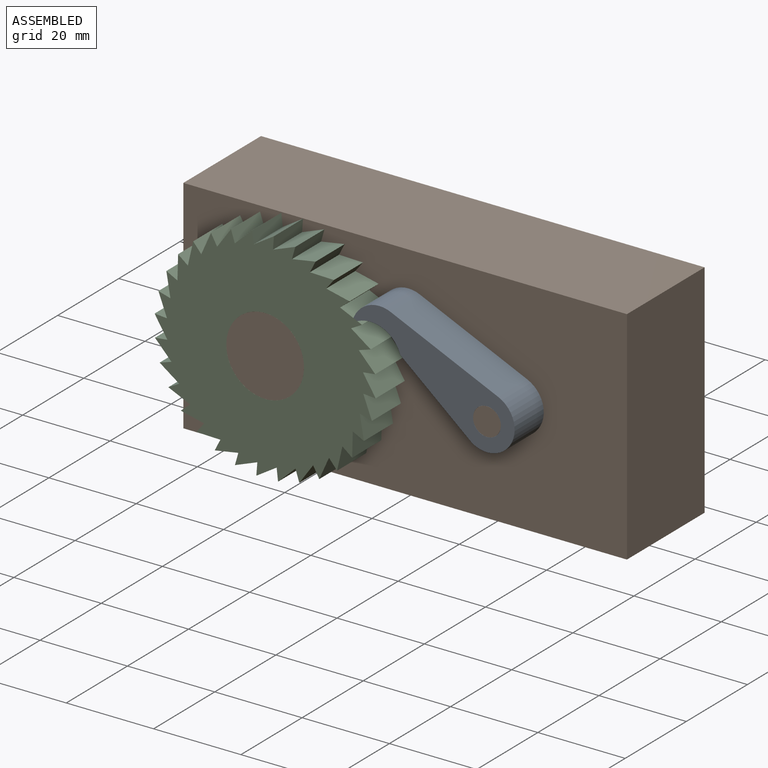
[diagram: assembled view]
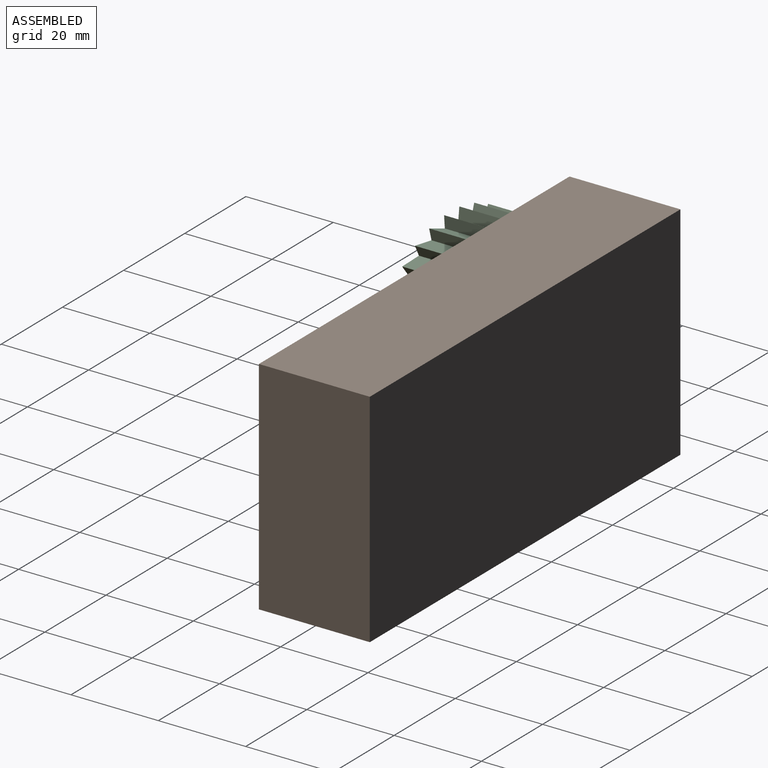
[diagram: assembled view, second angle]
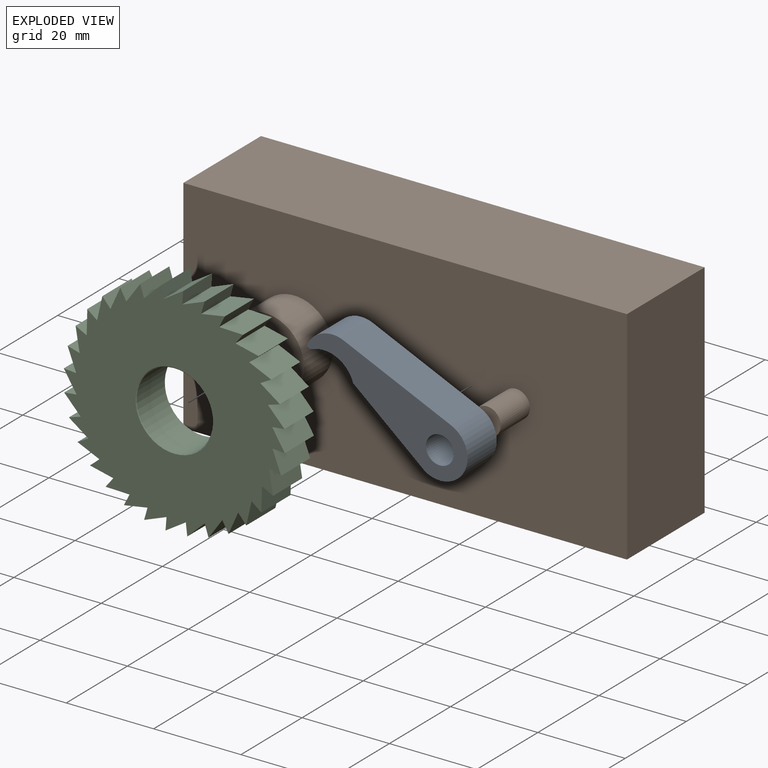
[diagram: exploded view]
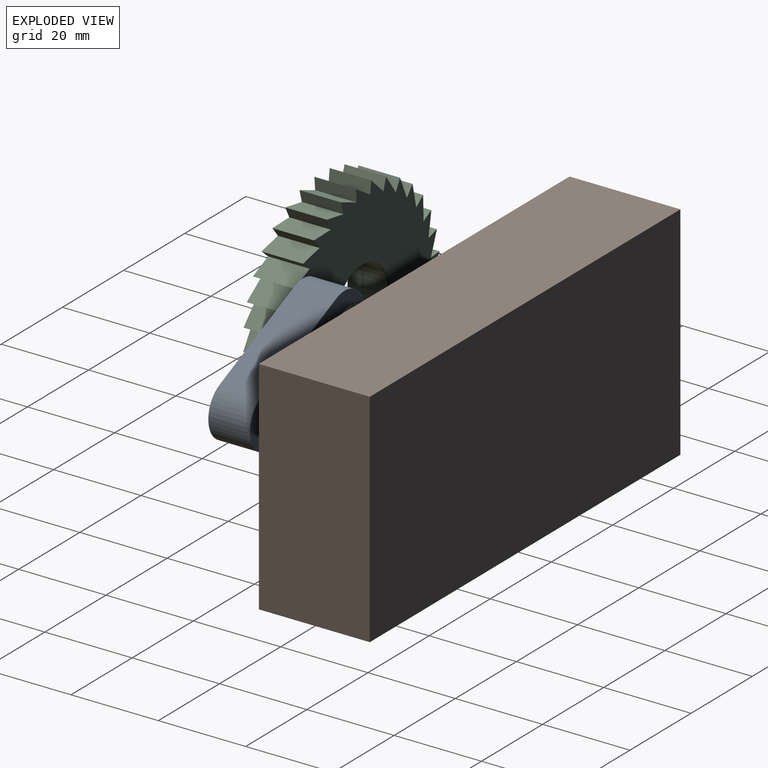
[diagram: exploded view, second angle]
ASSEMBLY  parts=3 mates=2
PART A: 10 faces, bbox 39.7x12.7x9.5 mm
  f0: plane 9.53x0.36mm, normal (-1,0,0), area 3.4mm2, adj f1,f6,f7,f8
  f1: cylinder r=6.35mm len=9.53mm, axis (0,0,1), area 95mm2, adj f0,f2,f7,f8
  f2: plane 26.99x9.53mm, normal (0,1,0), area 257.1mm2, adj f1,f3,f7,f8
  f3: cylinder r=6.35mm len=12.7mm, axis (0,0,1), area 198.7mm2, adj f2,f4,f7,f8
  f4: plane 20.68x9.53mm, normal (-0.28,-0.96,0), area 204.9mm2, adj f3,f5,f7,f8
  f5: cylinder r=7.14mm len=10.79mm, axis (0,0,1), area 116.5mm2, adj f4,f6,f7,f8
  f6: plane 9.53x0.96mm, normal (0,-1,0), area 9.2mm2, adj f0,f5,f7,f8
  f7: plane 39.69x12.7mm, normal (0,0,-1), area 294.6mm2, adj f0,f1,f2,f3,f4,f5,f6,f9
  f8: plane 39.69x12.7mm, normal (0,0,1), area 294.6mm2, adj f0,f1,f2,f3,f4,f5,f6,f9
  f9: cylinder r=3.19mm len=9.53mm, axis (0,0,1), area 190.8mm2, adj f7,f8
PART B: 10 faces, bbox 101.6x34.9x50.8 mm
  f0: plane 50.8x25.4mm, normal (1,0,0), area 1290.3mm2, adj f1,f3,f4,f5
  f1: plane 101.6x25.4mm, normal (0,0,1), area 2580.6mm2, adj f0,f2,f4,f5
  f2: plane 50.8x25.4mm, normal (-1,0,0), area 1290.3mm2, adj f1,f3,f4,f5
  f3: plane 101.6x25.4mm, normal (0,0,-1), area 2580.6mm2, adj f0,f2,f4,f5
  f4: plane 101.6x50.8mm, normal (0,-1,0), area 4880.6mm2, adj f0,f1,f2,f3,f6,f8
  f5: plane 101.6x50.8mm, normal (0,1,0), area 5161.3mm2, adj f0,f1,f2,f3
  f6: cylinder r=8.9mm len=17.81mm, axis (0,1,0), area 532.8mm2, adj f4,f7
  f7: plane 17.81x17.81mm, normal (0,-1,0), area 249mm2, adj f6
  f8: cylinder r=3.17mm len=9.53mm, axis (0,1,0), area 190mm2, adj f4,f9
  f9: plane 6.35x6.35mm, normal (0,-1,0), area 31.7mm2, adj f8
PART C: 69 faces, bbox 50.6x50.6x9.5 mm
  f0: plane 50.56x50.56mm, normal (0,0,-1), area 1538.6mm2, adj f3,f4,f5,f6,f7,f8,f9,f10
  f1: plane 50.56x50.56mm, normal (0,0,1), area 1538.6mm2, adj f3,f4,f5,f6,f7,f8,f9,f10
  f2: cylinder r=8.73mm len=17.46mm, axis (0,0,1), area 503.4mm2, adj f67,f68
  f3: plane 9.53x4.7mm, normal (-0.52,0.86,0), area 52.3mm2, adj f0,f1,f4,f6
  f4: plane 9.53x2.84mm, normal (1,-0.1,0), area 27.2mm2, adj f0,f1,f3,f65
  f5: plane 9.53x4.06mm, normal (-0.67,0.74,0), area 52.3mm2, adj f0,f1,f6,f8
  f6: plane 9.53x2.84mm, normal (1,0.1,0), area 27.2mm2, adj f0,f1,f3,f5
  f7: plane 9.53x4.42mm, normal (-0.81,0.59,0), area 52.3mm2, adj f0,f1,f8,f10
  f8: plane 9.53x2.73mm, normal (0.96,0.29,0), area 27.2mm2, adj f0,f1,f5,f7
  f9: plane 9.53x4.97mm, normal (-0.91,0.42,0), area 52.3mm2, adj f0,f1,f10,f12
  f10: plane 9.53x2.51mm, normal (0.88,0.47,0), area 27.2mm2, adj f0,f1,f7,f9
  f11: plane 9.53x5.33mm, normal (-0.97,0.24,0), area 52.3mm2, adj f0,f1,f12,f14
  f12: plane 9.53x2.2mm, normal (0.77,0.63,0), area 27.2mm2, adj f0,f1,f9,f11
  f13: plane 9.53x5.48mm, normal (-1,0.05,0), area 52.3mm2, adj f0,f1,f14,f16
  f14: plane 9.53x2.2mm, normal (0.63,0.77,0), area 27.2mm2, adj f0,f1,f11,f13
  f15: plane 9.53x5.43mm, normal (-0.99,-0.15,0), area 52.3mm2, adj f0,f1,f16,f18
  f16: plane 9.53x2.51mm, normal (0.47,0.88,0), area 27.2mm2, adj f0,f1,f13,f15
  f17: plane 9.53x5.16mm, normal (-0.94,-0.34,0), area 52.3mm2, adj f0,f1,f18,f20
  f18: plane 9.53x2.73mm, normal (0.29,0.96,0), area 27.2mm2, adj f0,f1,f15,f17
  f19: plane 9.53x4.7mm, normal (-0.86,-0.52,0), area 52.3mm2, adj f0,f1,f20,f22
  f20: plane 9.53x2.84mm, normal (0.1,1,0), area 27.2mm2, adj f0,f1,f17,f19
  f21: plane 9.53x4.06mm, normal (-0.74,-0.67,0), area 52.3mm2, adj f0,f1,f22,f24
  f22: plane 9.53x2.84mm, normal (-0.1,1,0), area 27.2mm2, adj f0,f1,f19,f21
  f23: plane 9.53x4.42mm, normal (-0.59,-0.81,0), area 52.3mm2, adj f0,f1,f24,f26
  f24: plane 9.53x2.73mm, normal (-0.29,0.96,0), area 27.2mm2, adj f0,f1,f21,f23
  f25: plane 9.53x4.97mm, normal (-0.42,-0.91,0), area 52.3mm2, adj f0,f1,f26,f28
  f26: plane 9.53x2.51mm, normal (-0.47,0.88,0), area 27.2mm2, adj f0,f1,f23,f25
  f27: plane 9.53x5.33mm, normal (-0.24,-0.97,0), area 52.3mm2, adj f0,f1,f28,f30
  f28: plane 9.53x2.2mm, normal (-0.63,0.77,0), area 27.2mm2, adj f0,f1,f25,f27
  f29: plane 9.53x5.48mm, normal (-0.05,-1,0), area 52.3mm2, adj f0,f1,f30,f32
  f30: plane 9.53x2.2mm, normal (-0.77,0.63,0), area 27.2mm2, adj f0,f1,f27,f29
  f31: plane 9.53x5.43mm, normal (0.15,-0.99,0), area 52.3mm2, adj f0,f1,f32,f34
  f32: plane 9.53x2.51mm, normal (-0.88,0.47,0), area 27.2mm2, adj f0,f1,f29,f31
  f33: plane 9.53x5.16mm, normal (0.34,-0.94,0), area 52.3mm2, adj f0,f1,f34,f36
  f34: plane 9.53x2.73mm, normal (-0.96,0.29,0), area 27.2mm2, adj f0,f1,f31,f33
  f35: plane 9.53x4.7mm, normal (0.52,-0.86,0), area 52.3mm2, adj f0,f1,f36,f38
  f36: plane 9.53x2.84mm, normal (-1,0.1,0), area 27.2mm2, adj f0,f1,f33,f35
  f37: plane 9.53x4.06mm, normal (0.67,-0.74,0), area 52.3mm2, adj f0,f1,f38,f40
  f38: plane 9.53x2.84mm, normal (-1,-0.1,0), area 27.2mm2, adj f0,f1,f35,f37
  f39: plane 9.53x4.42mm, normal (0.81,-0.59,0), area 52.3mm2, adj f0,f1,f40,f42
  f40: plane 9.53x2.73mm, normal (-0.96,-0.29,0), area 27.2mm2, adj f0,f1,f37,f39
  f41: plane 9.53x4.97mm, normal (0.91,-0.42,0), area 52.3mm2, adj f0,f1,f42,f44
  f42: plane 9.53x2.51mm, normal (-0.88,-0.47,0), area 27.2mm2, adj f0,f1,f39,f41
  f43: plane 9.53x5.33mm, normal (0.97,-0.24,0), area 52.3mm2, adj f0,f1,f44,f46
  f44: plane 9.53x2.2mm, normal (-0.77,-0.63,0), area 27.2mm2, adj f0,f1,f41,f43
  f45: plane 9.53x5.48mm, normal (1,-0.05,0), area 52.3mm2, adj f0,f1,f46,f48
  f46: plane 9.53x2.2mm, normal (-0.63,-0.77,0), area 27.2mm2, adj f0,f1,f43,f45
  f47: plane 9.53x5.43mm, normal (0.99,0.15,0), area 52.3mm2, adj f0,f1,f48,f50
  f48: plane 9.53x2.51mm, normal (-0.47,-0.88,0), area 27.2mm2, adj f0,f1,f45,f47
  f49: plane 9.53x5.16mm, normal (0.94,0.34,0), area 52.3mm2, adj f0,f1,f50,f52
  f50: plane 9.53x2.73mm, normal (-0.29,-0.96,0), area 27.2mm2, adj f0,f1,f47,f49
  f51: plane 9.53x4.7mm, normal (0.86,0.52,0), area 52.3mm2, adj f0,f1,f52,f54
  f52: plane 9.53x2.84mm, normal (-0.1,-1,0), area 27.2mm2, adj f0,f1,f49,f51
  f53: plane 9.53x4.06mm, normal (0.74,0.67,0), area 52.3mm2, adj f0,f1,f54,f56
  f54: plane 9.53x2.84mm, normal (0.1,-1,0), area 27.2mm2, adj f0,f1,f51,f53
  f55: plane 9.53x4.42mm, normal (0.59,0.81,0), area 52.3mm2, adj f0,f1,f56,f58
  f56: plane 9.53x2.73mm, normal (0.29,-0.96,0), area 27.2mm2, adj f0,f1,f53,f55
  f57: plane 9.53x4.97mm, normal (0.42,0.91,0), area 52.3mm2, adj f0,f1,f58,f60
  f58: plane 9.53x2.51mm, normal (0.47,-0.88,0), area 27.2mm2, adj f0,f1,f55,f57
  f59: plane 9.53x5.33mm, normal (0.24,0.97,0), area 52.3mm2, adj f0,f1,f60,f62
  f60: plane 9.53x2.2mm, normal (0.63,-0.77,0), area 27.2mm2, adj f0,f1,f57,f59
  f61: plane 9.53x5.48mm, normal (0.05,1,0), area 52.3mm2, adj f0,f1,f62,f64
  f62: plane 9.53x2.2mm, normal (0.77,-0.63,0), area 27.2mm2, adj f0,f1,f59,f61
  f63: plane 9.53x5.43mm, normal (-0.15,0.99,0), area 52.3mm2, adj f0,f1,f64,f66
  f64: plane 9.53x2.51mm, normal (0.88,-0.47,0), area 27.2mm2, adj f0,f1,f61,f63
  f65: plane 9.53x5.16mm, normal (-0.34,0.94,0), area 52.3mm2, adj f0,f1,f4,f66
  f66: plane 9.53x2.73mm, normal (0.96,-0.29,0), area 27.2mm2, adj f0,f1,f63,f65
  f67: cone r=8.91mm half-angle=45deg, axis (0,0,-1), area 13.7mm2, adj f0,f2
  f68: cone r=8.73mm half-angle=45deg, axis (0,0,1), area 13.7mm2, adj f1,f2
PLACE A rot(axis=(0.96,0.2,-0.2),92.5deg) t=(14.41,-20.19,8.04)mm
PLACE B t=(1.06,14.73,1.94)mm fixed
PLACE C rot(axis=(0.58,0.57,-0.57),119.4deg) t=(-24.34,-20.19,1.94)mm
MATE revolute A.f3 <-> B.f8  axis (0,-1,0) through (26.46,-20.19,1.94)mm
MATE revolute C.f2 <-> B.f6  axis (0,1,0) through (-24.34,-10.67,1.94)mm
